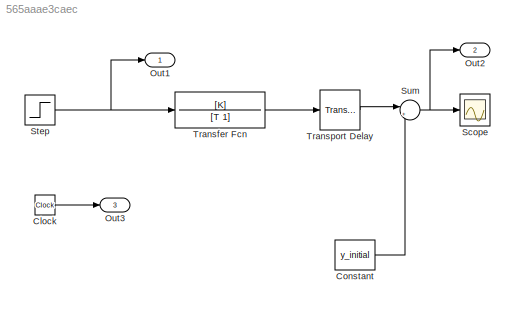
MODEL slx_565aaae3caec
KIND model
CONFIG AbsTol = auto
CONFIG EnableMultiTasking = off
CONFIG FixedStep = 1
CONFIG MaxStep = auto
CONFIG MinStep = auto
CONFIG RelTol = 1e-3
CONFIG SampleTimeConstraint = Unconstrained
CONFIG Solver = FixedStepAuto
CONFIG SolverName = FixedStepAuto
CONFIG StartTime = 0.0
CONFIG StopTime = 600
BLOCK [Clock] Clock
BLOCK [Constant] Constant
  Value = y_initial
BLOCK [Outport] Out1
  SampleTime = 1
BLOCK [Outport] Out2
  Port = 2
  SampleTime = 1
BLOCK [Outport] Out3
  Port = 3
  SampleTime = 1
BLOCK [Scope] Scope
  Floating = off
  NumInputPorts = 1
  Ports = [1]
  ScopeSpecificationString = Simulink.scopes.TimeScopeBlockCfg('CurrentConfiguration', extmgr.ConfigurationSet(extmgr.Configuration('Core','General UI',true),extmgr.Configuration('Core','Source UI',true),extmgr.Configuration('Sources','WiredSimulink',true),extmgr.Configuration('Visuals','Time Domain',true,'SerializedDisplays',{struct('MinYLimReal','13.93999','MaxYLimReal','83.24006','YLabelReal','','MinYLimMag','13.93999','Ma...<+1358ch>
BLOCK [Step] Step
  After = 80
  SampleTime = 0
BLOCK [Sum] Sum
  Inputs = |++
  Ports = [2, 1]
BLOCK [TransferFcn] Transfer Fcn
  Denominator = [T 1]
  Numerator = [K]
BLOCK [TransportDelay] Transport Delay
  DelayTime = L
  Ports = [1, 1]
LINE Clock:1 -> Out3:1
LINE Constant:1 -> Sum:2
NET Step:1 -> Out1:1, Transfer Fcn:1
NET Sum:1 -> Out2:1, Scope:1
LINE Transfer Fcn:1 -> Transport Delay:1
LINE Transport Delay:1 -> Sum:1
note: NET lines group one-source signal fan-out (src -> all destinations, sorted); 1:1 wires keep LINE
